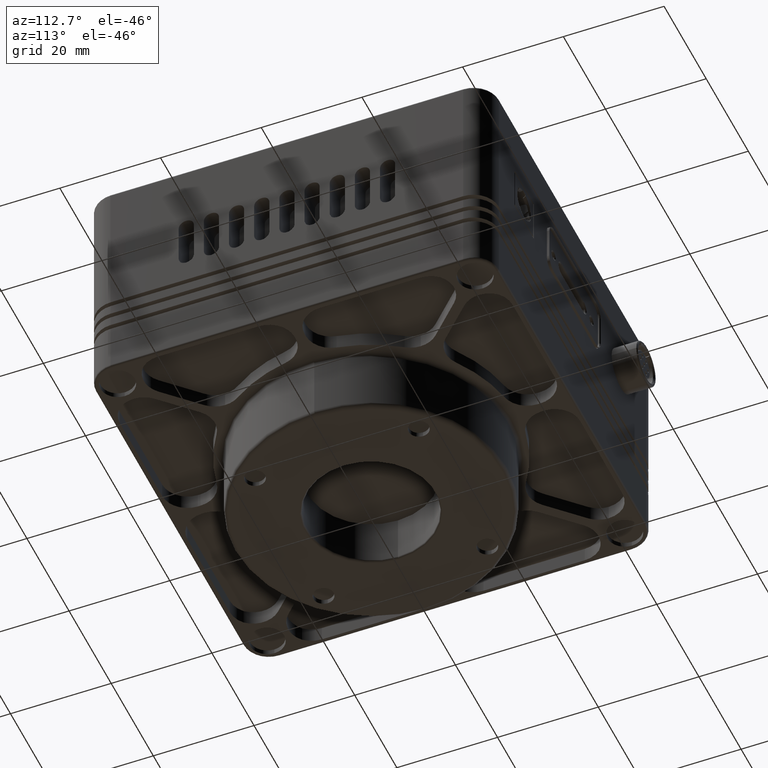
[diagram: clean part render]
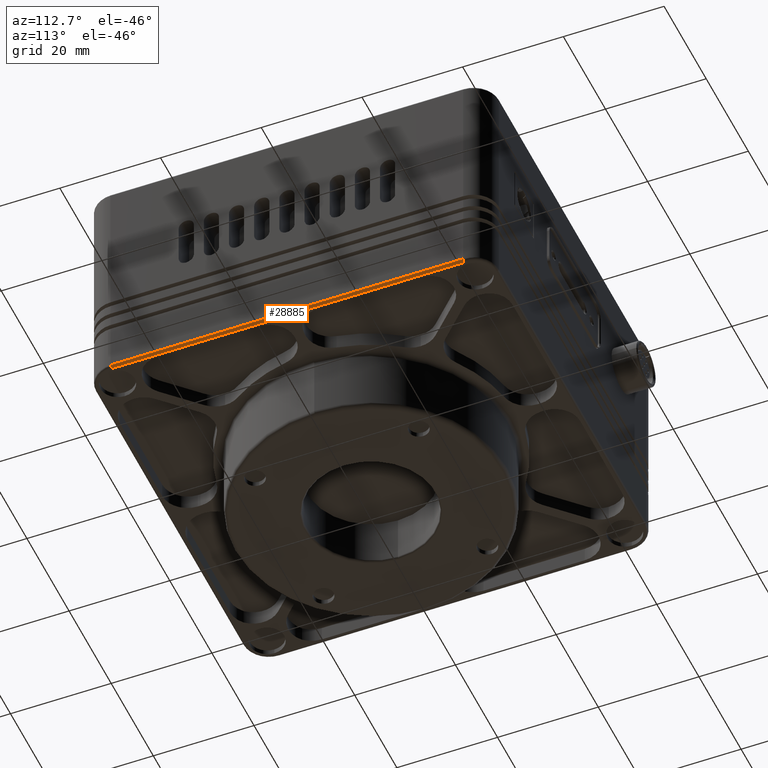
[diagram: same view with one face highlighted and labeled with its STEP entity id]
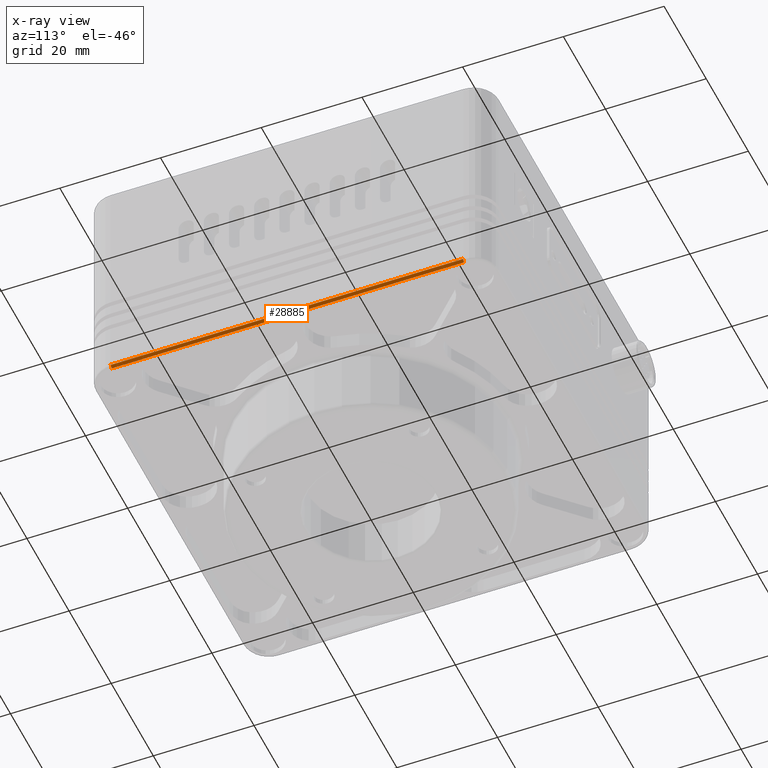
[diagram: x-ray of the same camera — body ghosted, the highlighted face saturated]
A machine part, auxiliary view. The second image highlights one B-rep face of the part: STEP entity #28885.
The next image is the same camera in x-ray: the body ghosted, the highlighted face saturated — about 0% of this face is hidden behind the body in this view.
In plain terms, the highlighted cylindrical surface (edge-blend (fillet) strip) has radius 0.5 mm, axis along (0, 1, 0).
Its self-contained STEP definition (entity closure, byte-faithful):
#1035 = EDGE_CURVE ( 'NONE', #22498, #10450, #40875, .T. ) ;
#1351 = CARTESIAN_POINT ( 'NONE',  ( 40.00000000000000000, 35.00000000000000000, -15.29999999999999893 ) ) ;
#3830 = DIRECTION ( 'NONE',  ( 0.000000000000000000, 0.000000000000000000, 1.000000000000000000 ) ) ;
#8253 = DIRECTION ( 'NONE',  ( 0.000000000000000000, 1.000000000000000000, 0.000000000000000000 ) ) ;
#9759 = DIRECTION ( 'NONE',  ( 0.000000000000000000, 0.000000000000000000, 1.000000000000000000 ) ) ;
#10450 = VERTEX_POINT ( 'NONE', #24881 ) ;
#11634 = CARTESIAN_POINT ( 'NONE',  ( 40.00000000000000000, 35.00000000000000000, -15.29999999999999893 ) ) ;
#13128 = ORIENTED_EDGE ( 'NONE', *, *, #34081, .T. ) ;
#13976 = DIRECTION ( 'NONE',  ( 0.000000000000000000, 0.000000000000000000, 1.000000000000000000 ) ) ;
#15224 = ORIENTED_EDGE ( 'NONE', *, *, #15895, .F. ) ;
#15895 = EDGE_CURVE ( 'NONE', #48565, #22498, #49965, .T. ) ;
#19822 = VECTOR ( 'NONE', #20018, 1000.000000000000000 ) ;
#20018 = DIRECTION ( 'NONE',  ( 0.000000000000000000, -1.000000000000000000, 0.000000000000000000 ) ) ;
#21651 = CARTESIAN_POINT ( 'NONE',  ( 39.50000000000000000, 0.000000000000000000, -15.29999999999999893 ) ) ;
#22498 = VERTEX_POINT ( 'NONE', #1351 ) ;
#24327 = CIRCLE ( 'NONE', #41956, 0.5000000000000004441 ) ;
#24881 = CARTESIAN_POINT ( 'NONE',  ( 39.50000000000000000, 35.00000000000000000, -15.80000000000000071 ) ) ;
#25528 = CYLINDRICAL_SURFACE ( 'NONE', #29999, 0.5000000000000004441 ) ;
#26345 = EDGE_LOOP ( 'NONE', ( #13128, #46688, #46875, #15224 ) ) ;
#27544 = CARTESIAN_POINT ( 'NONE',  ( 39.50000000000000000, -35.00000000000000000, -15.29999999999999893 ) ) ;
#28885 = ADVANCED_FACE ( 'NONE', ( #47563 ), #25528, .T. ) ;
#29517 = CARTESIAN_POINT ( 'NONE',  ( 39.50000000000000000, -35.00000000000000000, -15.80000000000000071 ) ) ;
#29999 = AXIS2_PLACEMENT_3D ( 'NONE', #21651, #39303, #9759 ) ;
#32956 = EDGE_CURVE ( 'NONE', #10450, #37276, #40189, .T. ) ;
#34081 = EDGE_CURVE ( 'NONE', #48565, #37276, #24327, .T. ) ;
#37276 = VERTEX_POINT ( 'NONE', #29517 ) ;
#39303 = DIRECTION ( 'NONE',  ( 0.000000000000000000, 1.000000000000000000, 0.000000000000000000 ) ) ;
#40189 = LINE ( 'NONE', #41005, #19822 ) ;
#40875 = CIRCLE ( 'NONE', #49686, 0.5000000000000004441 ) ;
#41005 = CARTESIAN_POINT ( 'NONE',  ( 39.50000000000000000, -35.00000000000000000, -15.80000000000000071 ) ) ;
#41376 = CARTESIAN_POINT ( 'NONE',  ( 39.50000000000000000, 35.00000000000000000, -15.29999999999999893 ) ) ;
#41728 = VECTOR ( 'NONE', #50517, 1000.000000000000000 ) ;
#41956 = AXIS2_PLACEMENT_3D ( 'NONE', #27544, #44350, #13976 ) ;
#44350 = DIRECTION ( 'NONE',  ( 0.000000000000000000, 1.000000000000000000, 0.000000000000000000 ) ) ;
#46688 = ORIENTED_EDGE ( 'NONE', *, *, #32956, .F. ) ;
#46875 = ORIENTED_EDGE ( 'NONE', *, *, #1035, .F. ) ;
#47563 = FACE_OUTER_BOUND ( 'NONE', #26345, .T. ) ;
#48565 = VERTEX_POINT ( 'NONE', #52848 ) ;
#49686 = AXIS2_PLACEMENT_3D ( 'NONE', #41376, #8253, #3830 ) ;
#49965 = LINE ( 'NONE', #11634, #41728 ) ;
#50517 = DIRECTION ( 'NONE',  ( 0.000000000000000000, 1.000000000000000000, 0.000000000000000000 ) ) ;
#52848 = CARTESIAN_POINT ( 'NONE',  ( 40.00000000000000000, -35.00000000000000000, -15.29999999999999893 ) ) ;